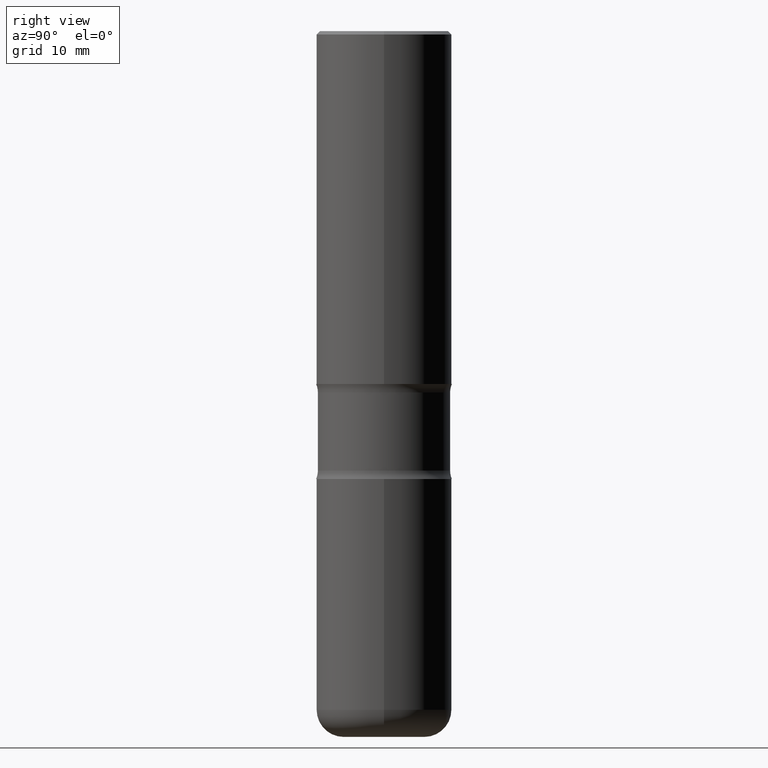
[diagram: clean part render]
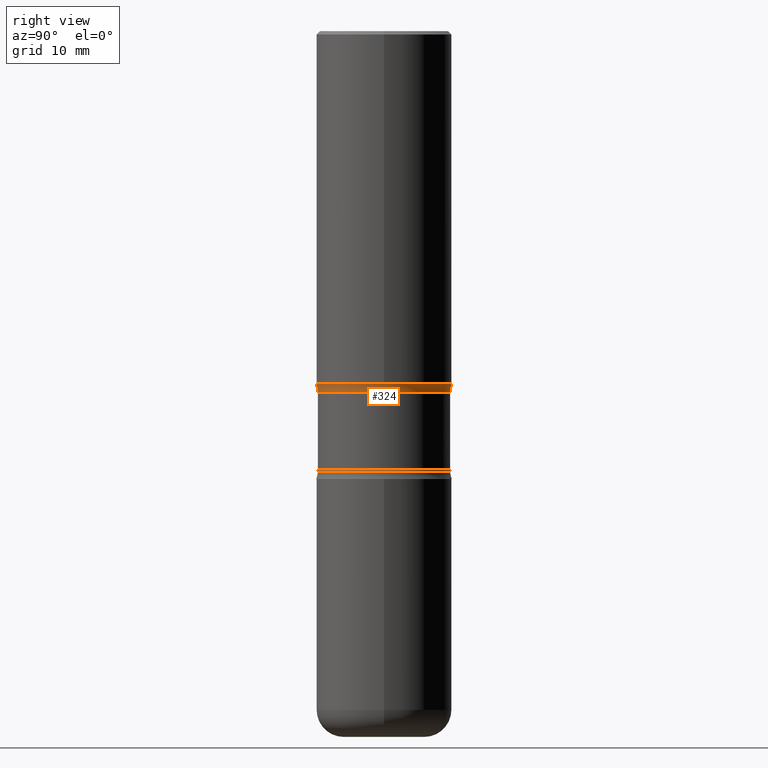
[diagram: same view with one face highlighted and labeled with its STEP entity id]
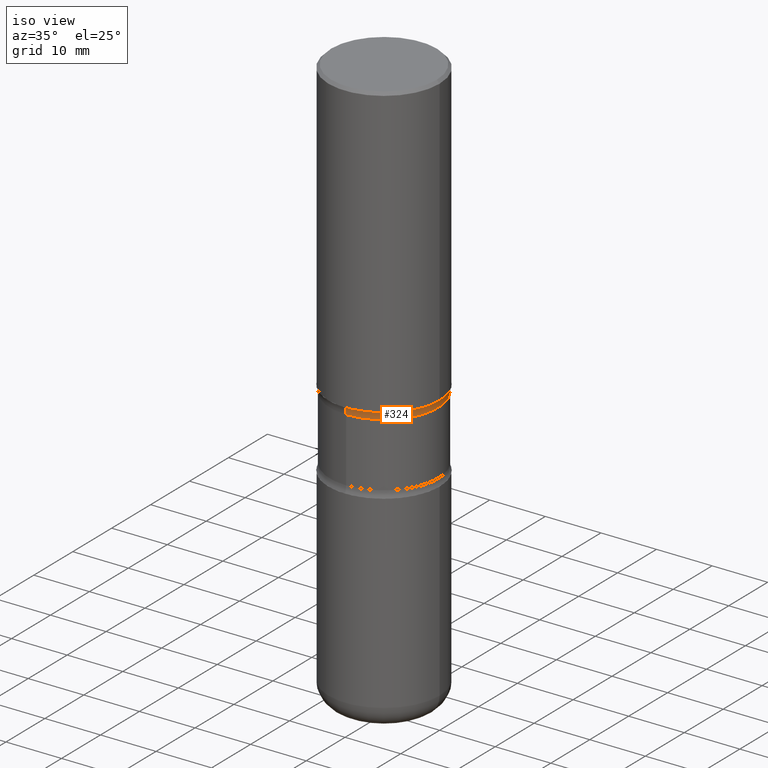
[diagram: same view with one face highlighted and labeled with its STEP entity id]
A machine part, right view. The second image highlights one B-rep face of the part: STEP entity #324.
A second angle (iso view) of the same face is appended — the face is thin or edge-on in the first view.
In plain terms, the highlighted toroidal blend (fillet) surface has major radius 12.9159 mm and minor (blend) radius 3.175 mm.
Its self-contained STEP definition (entity closure, byte-faithful):
#23 = CARTESIAN_POINT ( 'NONE',  ( 2.677966186892733991E-15, 0.3834999999999926246, -2.096756647682593400 ) ) ;
#31 = EDGE_CURVE ( 'NONE', #83, #57, #429, .T. ) ;
#57 = VERTEX_POINT ( 'NONE', #284 ) ;
#67 = CARTESIAN_POINT ( 'NONE',  ( -2.665989521933967693E-15, -0.3835000000000073905, -2.096756647682590735 ) ) ;
#82 = DIRECTION ( 'NONE',  ( 6.860497997771532351E-15, 1.000000000000000000, 0.000000000000000000 ) ) ;
#83 = VERTEX_POINT ( 'NONE', #23 ) ;
#108 = VERTEX_POINT ( 'NONE', #67 ) ;
#124 = DIRECTION ( 'NONE',  ( 2.476008433645011479E-29, -3.447746854112956913E-15, -1.000000000000000000 ) ) ;
#131 = FACE_OUTER_BOUND ( 'NONE', #362, .T. ) ;
#140 = DIRECTION ( 'NONE',  ( 6.982962677686265133E-15, 1.000000000000000000, -3.447746854112956913E-15 ) ) ;
#156 = DIRECTION ( 'NONE',  ( 2.476008433645011479E-29, -3.447746854112956913E-15, -1.000000000000000000 ) ) ;
#179 = CARTESIAN_POINT ( 'NONE',  ( -2.700978061722603132E-15, -0.3937000000000074884, -2.047299999999998565 ) ) ;
#190 = TOROIDAL_SURFACE ( 'NONE', #402, 0.5084999999999999520, 0.1250000000000000278 ) ;
#215 = AXIS2_PLACEMENT_3D ( 'NONE', #302, #124, #336 ) ;
#229 = DIRECTION ( 'NONE',  ( 6.982962677686265922E-15, 1.000000000000000000, -3.469453890861393995E-15 ) ) ;
#244 = EDGE_CURVE ( 'NONE', #57, #465, #505, .T. ) ;
#265 = CARTESIAN_POINT ( 'NONE',  ( 3.550836521603517725E-15, 0.5084999999999926246, -2.096756647682593844 ) ) ;
#277 = CARTESIAN_POINT ( 'NONE',  ( 4.989777898209692525E-29, -7.172211819548379016E-15, -2.047299999999999898 ) ) ;
#284 = CARTESIAN_POINT ( 'NONE',  ( 2.749192406205134887E-15, 0.3936999999999931110, -2.047300000000001230 ) ) ;
#294 = ORIENTED_EDGE ( 'NONE', *, *, #479, .F. ) ;
#302 = CARTESIAN_POINT ( 'NONE',  ( 5.112232974971601928E-29, -7.342725821011008933E-15, -2.096756647682592067 ) ) ;
#306 = CARTESIAN_POINT ( 'NONE',  ( -3.488563231866771728E-15, -0.5085000000000072795, -2.096756647682590735 ) ) ;
#318 = AXIS2_PLACEMENT_3D ( 'NONE', #306, #353, #82 ) ;
#324 = ADVANCED_FACE ( 'NONE', ( #131 ), #190, .F. ) ;
#326 = ORIENTED_EDGE ( 'NONE', *, *, #244, .T. ) ;
#327 = ORIENTED_EDGE ( 'NONE', *, *, #359, .F. ) ;
#336 = DIRECTION ( 'NONE',  ( 6.982962677686265922E-15, 1.000000000000000000, -3.561731412860838918E-15 ) ) ;
#353 = DIRECTION ( 'NONE',  ( 1.000000000000000000, -6.860497997771530774E-15, 4.841334472591514894E-29 ) ) ;
#359 = EDGE_CURVE ( 'NONE', #108, #465, #412, .T. ) ;
#362 = EDGE_LOOP ( 'NONE', ( #327, #294, #488, #326 ) ) ;
#386 = AXIS2_PLACEMENT_3D ( 'NONE', #265, #501, #489 ) ;
#402 = AXIS2_PLACEMENT_3D ( 'NONE', #490, #156, #140 ) ;
#412 = CIRCLE ( 'NONE', #318, 0.1250000000000000278 ) ;
#429 = CIRCLE ( 'NONE', #386, 0.1250000000000000278 ) ;
#440 = CIRCLE ( 'NONE', #215, 0.3835000000000000075 ) ;
#445 = DIRECTION ( 'NONE',  ( 2.476008433645011479E-29, -3.447746854112956913E-15, -1.000000000000000000 ) ) ;
#465 = VERTEX_POINT ( 'NONE', #179 ) ;
#479 = EDGE_CURVE ( 'NONE', #83, #108, #440, .T. ) ;
#483 = AXIS2_PLACEMENT_3D ( 'NONE', #277, #445, #229 ) ;
#488 = ORIENTED_EDGE ( 'NONE', *, *, #31, .T. ) ;
#489 = DIRECTION ( 'NONE',  ( -6.982962677686265133E-15, -1.000000000000000000, 0.000000000000000000 ) ) ;
#490 = CARTESIAN_POINT ( 'NONE',  ( 5.127552976069098251E-29, -7.320786707479082352E-15, -2.096756647682592067 ) ) ;
#501 = DIRECTION ( 'NONE',  ( -1.000000000000000000, 6.982962677686265922E-15, -4.883557194083112901E-29 ) ) ;
#505 = CIRCLE ( 'NONE', #483, 0.3937000000000002164 ) ;